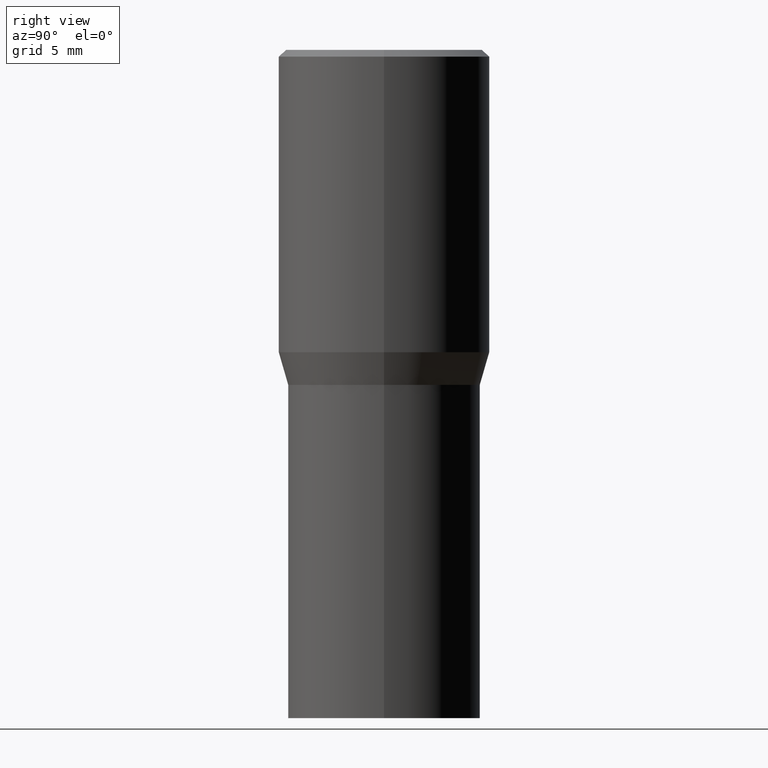
[diagram: clean part render]
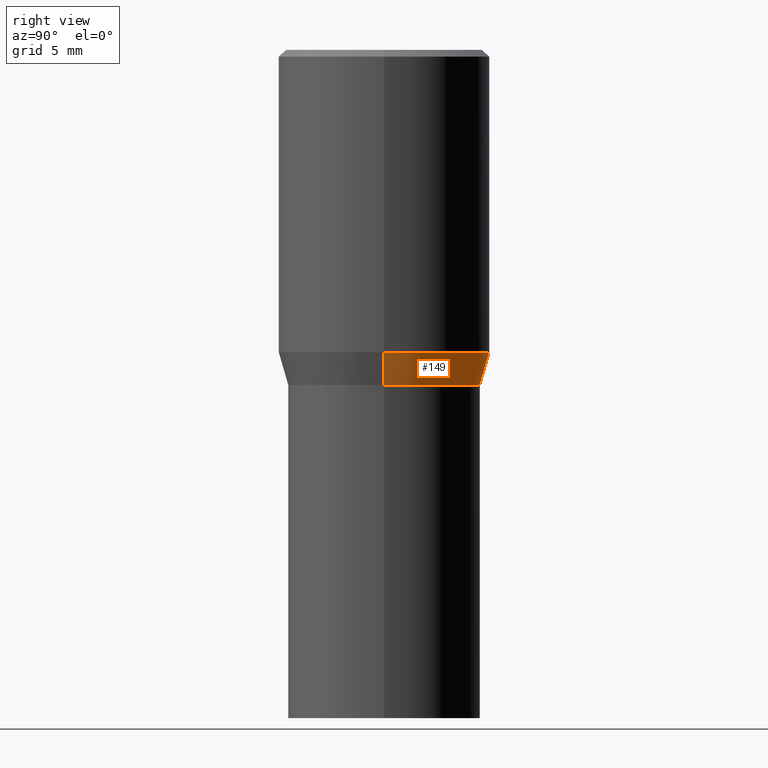
[diagram: same view with one face highlighted and labeled with its STEP entity id]
A machine part, right view. The second image highlights one B-rep face of the part: STEP entity #149.
In plain terms, the highlighted conical surface has half-angle 15 deg.
Its self-contained STEP definition (entity closure, byte-faithful):
#1 = DIRECTION ( 'NONE',  ( 1.000000000000000000, -6.982962677686266711E-15, 0.000000000000000000 ) ) ;
#4 = CARTESIAN_POINT ( 'NONE',  ( -0.2165500000000000203, -8.890793087369993447E-16, -0.7520000000000001128 ) ) ;
#10 = EDGE_LOOP ( 'NONE', ( #237, #407, #57, #299 ) ) ;
#57 = ORIENTED_EDGE ( 'NONE', *, *, #216, .F. ) ;
#92 = DIRECTION ( 'NONE',  ( 1.000000000000000000, -6.982962677686266711E-15, 0.000000000000000000 ) ) ;
#98 = VECTOR ( 'NONE', #192, 39.37007874015748143 ) ;
#126 = VERTEX_POINT ( 'NONE', #207 ) ;
#135 = AXIS2_PLACEMENT_3D ( 'NONE', #321, #256, #92 ) ;
#141 = AXIS2_PLACEMENT_3D ( 'NONE', #356, #357, #1 ) ;
#145 = LINE ( 'NONE', #250, #335 ) ;
#149 = ADVANCED_FACE ( 'NONE', ( #212 ), #176, .T. ) ;
#176 = CONICAL_SURFACE ( 'NONE', #141, 0.2165500000000000203, 0.2617993877991505736 ) ;
#179 = DIRECTION ( 'NONE',  ( 1.000000000000000000, -6.982962677686266711E-15, 0.000000000000000000 ) ) ;
#192 = DIRECTION ( 'NONE',  ( -0.2588190451025218497, 5.211531920934553408E-15, 0.9659258262890679791 ) ) ;
#207 = CARTESIAN_POINT ( 'NONE',  ( -0.2361999999999999933, -6.912449449524502887E-16, -0.6786652016312719748 ) ) ;
#208 = AXIS2_PLACEMENT_3D ( 'NONE', #246, #214, #179 ) ;
#212 = FACE_OUTER_BOUND ( 'NONE', #10, .T. ) ;
#214 = DIRECTION ( 'NONE',  ( -2.445468806185136597E-29, 3.491481338843145583E-15, 1.000000000000000000 ) ) ;
#216 = EDGE_CURVE ( 'NONE', #438, #126, #308, .T. ) ;
#233 = VERTEX_POINT ( 'NONE', #4 ) ;
#237 = ORIENTED_EDGE ( 'NONE', *, *, #342, .T. ) ;
#241 = EDGE_CURVE ( 'NONE', #338, #438, #145, .T. ) ;
#246 = CARTESIAN_POINT ( 'NONE',  ( 1.659654580432621677E-29, -2.369546886817807077E-15, -0.6786652016312719748 ) ) ;
#250 = CARTESIAN_POINT ( 'NONE',  ( 0.2165500000000000203, -4.137754534663007109E-15, -0.7520000000000001128 ) ) ;
#256 = DIRECTION ( 'NONE',  ( -2.445468806185136597E-29, 3.491481338843145583E-15, 1.000000000000000000 ) ) ;
#271 = CIRCLE ( 'NONE', #135, 0.2165500000000000203 ) ;
#289 = DIRECTION ( 'NONE',  ( 0.2588190451025218497, 1.565188264969618221E-15, 0.9659258262890679791 ) ) ;
#291 = CARTESIAN_POINT ( 'NONE',  ( 0.2165500000000000203, -4.137754534663007109E-15, -0.7520000000000001128 ) ) ;
#295 = LINE ( 'NONE', #439, #98 ) ;
#299 = ORIENTED_EDGE ( 'NONE', *, *, #241, .F. ) ;
#308 = CIRCLE ( 'NONE', #208, 0.2361999999999999933 ) ;
#321 = CARTESIAN_POINT ( 'NONE',  ( 1.838992542251222813E-29, -2.625593966810045497E-15, -0.7520000000000001128 ) ) ;
#335 = VECTOR ( 'NONE', #289, 39.37007874015748143 ) ;
#338 = VERTEX_POINT ( 'NONE', #291 ) ;
#342 = EDGE_CURVE ( 'NONE', #338, #233, #271, .T. ) ;
#356 = CARTESIAN_POINT ( 'NONE',  ( 1.838992542251222813E-29, -2.625593966810045497E-15, -0.7520000000000001128 ) ) ;
#357 = DIRECTION ( 'NONE',  ( -2.445468806185136597E-29, 3.491481338843145583E-15, 1.000000000000000000 ) ) ;
#407 = ORIENTED_EDGE ( 'NONE', *, *, #435, .T. ) ;
#435 = EDGE_CURVE ( 'NONE', #233, #126, #295, .T. ) ;
#438 = VERTEX_POINT ( 'NONE', #445 ) ;
#439 = CARTESIAN_POINT ( 'NONE',  ( -0.2165500000000000203, -1.086913672521548598E-15, -0.7520000000000001128 ) ) ;
#445 = CARTESIAN_POINT ( 'NONE',  ( 0.2361999999999999933, -4.018922671287303208E-15, -0.6786652016312719748 ) ) ;